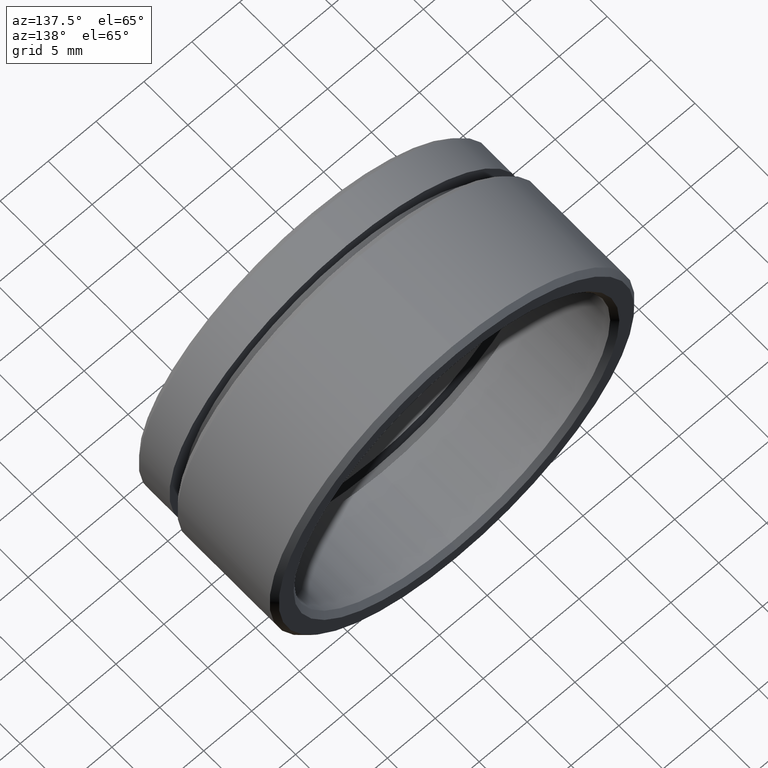
[diagram: clean part render]
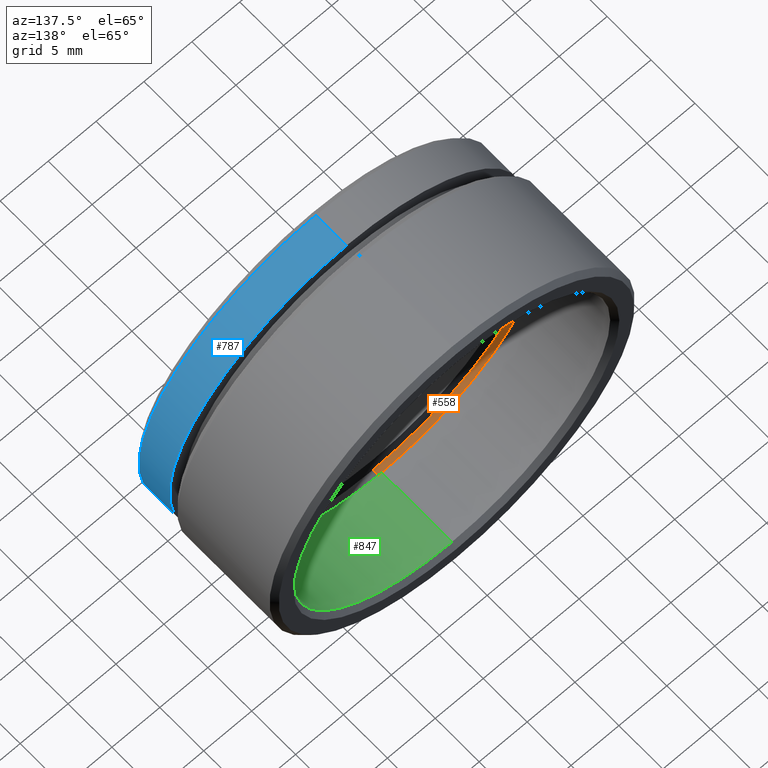
[diagram: same view with three faces highlighted in distinct colors, each labeled with its STEP entity id]
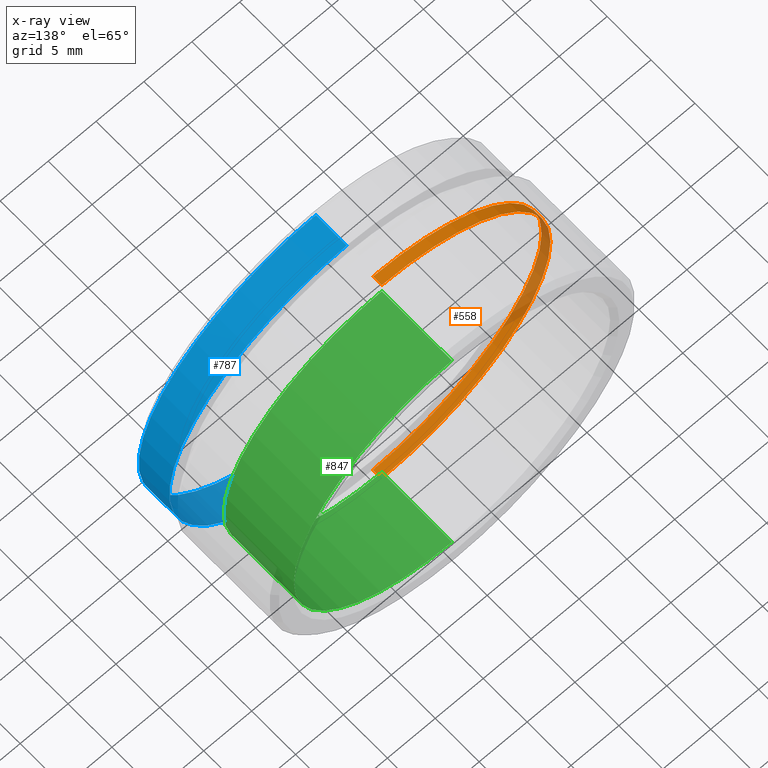
[diagram: x-ray of the same camera — body ghosted, the three highlighted faces saturated]
A machine part, auxiliary view with three faces highlighted in distinct colors.
The next image is the same camera in x-ray (body ghosted, the three faces saturated) — at least one of them is partly hidden behind the body in this view.
Their STEP definitions:

[orange] entity #558 — the highlighted cylindrical surface (partial cylindrical patch) has radius 17.6 mm, axis along (-0, -1, -0).
#28 = VERTEX_POINT ( 'NONE', #668 ) ;
#46 = DIRECTION ( 'NONE',  ( -0.0000000000000000000, -1.000000000000000000, -0.0000000000000000000 ) ) ;
#93 = AXIS2_PLACEMENT_3D ( 'NONE', #188, #46, #199 ) ;
#111 = ORIENTED_EDGE ( 'NONE', *, *, #666, .F. ) ;
#117 = CARTESIAN_POINT ( 'NONE',  ( 0.0000000000000000000, 0.0000000000000000000, -17.60000000000000100 ) ) ;
#125 = CARTESIAN_POINT ( 'NONE',  ( 2.155378366499341600E-015, 8.000000000000000000, 17.60000000000000100 ) ) ;
#154 = EDGE_CURVE ( 'NONE', #28, #497, #358, .T. ) ;
#187 = ORIENTED_EDGE ( 'NONE', *, *, #344, .T. ) ;
#188 = CARTESIAN_POINT ( 'NONE',  ( 0.0000000000000000000, 8.000000000000000000, 0.0000000000000000000 ) ) ;
#199 = DIRECTION ( 'NONE',  ( 0.0000000000000000000, 0.0000000000000000000, -1.000000000000000000 ) ) ;
#272 = VERTEX_POINT ( 'NONE', #125 ) ;
#286 = DIRECTION ( 'NONE',  ( -0.0000000000000000000, -1.000000000000000000, -0.0000000000000000000 ) ) ;
#291 = ORIENTED_EDGE ( 'NONE', *, *, #292, .F. ) ;
#292 = EDGE_CURVE ( 'NONE', #448, #497, #628, .T. ) ;
#322 = CARTESIAN_POINT ( 'NONE',  ( 0.0000000000000000000, 8.000000000000000000, -17.60000000000000100 ) ) ;
#344 = EDGE_CURVE ( 'NONE', #272, #28, #470, .T. ) ;
#350 = EDGE_LOOP ( 'NONE', ( #111, #187, #603, #291 ) ) ;
#358 = CIRCLE ( 'NONE', #775, 17.60000000000000100 ) ;
#394 = CARTESIAN_POINT ( 'NONE',  ( 0.0000000000000000000, 0.0000000000000000000, 0.0000000000000000000 ) ) ;
#395 = DIRECTION ( 'NONE',  ( -0.0000000000000000000, -1.000000000000000000, -0.0000000000000000000 ) ) ;
#415 = VECTOR ( 'NONE', #286, 1000.000000000000000 ) ;
#448 = VERTEX_POINT ( 'NONE', #322 ) ;
#456 = CARTESIAN_POINT ( 'NONE',  ( 0.0000000000000000000, 7.000000000000000000, 0.0000000000000000000 ) ) ;
#470 = LINE ( 'NONE', #834, #813 ) ;
#484 = DIRECTION ( 'NONE',  ( 0.0000000000000000000, 0.0000000000000000000, -1.000000000000000000 ) ) ;
#497 = VERTEX_POINT ( 'NONE', #706 ) ;
#510 = AXIS2_PLACEMENT_3D ( 'NONE', #394, #395, #647 ) ;
#541 = CYLINDRICAL_SURFACE ( 'NONE', #510, 17.60000000000000100 ) ;
#558 = ADVANCED_FACE ( 'NONE', ( #782 ), #541, .F. ) ;
#603 = ORIENTED_EDGE ( 'NONE', *, *, #154, .T. ) ;
#628 = LINE ( 'NONE', #117, #415 ) ;
#647 = DIRECTION ( 'NONE',  ( 0.0000000000000000000, 0.0000000000000000000, -1.000000000000000000 ) ) ;
#666 = EDGE_CURVE ( 'NONE', #272, #448, #723, .T. ) ;
#668 = CARTESIAN_POINT ( 'NONE',  ( 2.155378366499341600E-015, 7.000000000000000000, 17.60000000000000100 ) ) ;
#706 = CARTESIAN_POINT ( 'NONE',  ( 0.0000000000000000000, 7.000000000000000000, -17.60000000000000100 ) ) ;
#723 = CIRCLE ( 'NONE', #93, 17.60000000000000100 ) ;
#775 = AXIS2_PLACEMENT_3D ( 'NONE', #456, #840, #484 ) ;
#782 = FACE_OUTER_BOUND ( 'NONE', #350, .T. ) ;
#813 = VECTOR ( 'NONE', #824, 1000.000000000000000 ) ;
#824 = DIRECTION ( 'NONE',  ( -0.0000000000000000000, -1.000000000000000000, -0.0000000000000000000 ) ) ;
#834 = CARTESIAN_POINT ( 'NONE',  ( 2.155378366499341600E-015, 0.0000000000000000000, 17.60000000000000100 ) ) ;
#840 = DIRECTION ( 'NONE',  ( -0.0000000000000000000, -1.000000000000000000, -0.0000000000000000000 ) ) ;

[blue] entity #787 — the highlighted cylindrical surface (partial cylindrical patch) has radius 18.5 mm, axis along (-0, -1, -0).
#8 = AXIS2_PLACEMENT_3D ( 'NONE', #165, #555, #306 ) ;
#19 = DIRECTION ( 'NONE',  ( -0.0000000000000000000, -1.000000000000000000, -0.0000000000000000000 ) ) ;
#32 = EDGE_CURVE ( 'NONE', #601, #513, #253, .T. ) ;
#47 = CARTESIAN_POINT ( 'NONE',  ( 0.0000000000000000000, 0.0000000000000000000, 0.0000000000000000000 ) ) ;
#56 = VERTEX_POINT ( 'NONE', #661 ) ;
#90 = ORIENTED_EDGE ( 'NONE', *, *, #243, .T. ) ;
#98 = VERTEX_POINT ( 'NONE', #857 ) ;
#105 = FACE_OUTER_BOUND ( 'NONE', #331, .T. ) ;
#165 = CARTESIAN_POINT ( 'NONE',  ( 0.0000000000000000000, 4.000000000000000900, 0.0000000000000000000 ) ) ;
#204 = CYLINDRICAL_SURFACE ( 'NONE', #853, 18.50000000000000400 ) ;
#243 = EDGE_CURVE ( 'NONE', #98, #601, #483, .T. ) ;
#253 = LINE ( 'NONE', #323, #444 ) ;
#301 = ORIENTED_EDGE ( 'NONE', *, *, #648, .F. ) ;
#306 = DIRECTION ( 'NONE',  ( 0.0000000000000000000, 0.0000000000000000000, -1.000000000000000000 ) ) ;
#323 = CARTESIAN_POINT ( 'NONE',  ( 2.265596578422603800E-015, 0.0000000000000000000, 18.50000000000000400 ) ) ;
#331 = EDGE_LOOP ( 'NONE', ( #90, #703, #340, #301 ) ) ;
#340 = ORIENTED_EDGE ( 'NONE', *, *, #494, .T. ) ;
#380 = DIRECTION ( 'NONE',  ( 0.0000000000000000000, 1.000000000000000000, 0.0000000000000000000 ) ) ;
#384 = DIRECTION ( 'NONE',  ( 0.0000000000000000000, 0.0000000000000000000, -1.000000000000000000 ) ) ;
#402 = VECTOR ( 'NONE', #438, 1000.000000000000000 ) ;
#438 = DIRECTION ( 'NONE',  ( -0.0000000000000000000, -1.000000000000000000, -0.0000000000000000000 ) ) ;
#440 = CARTESIAN_POINT ( 'NONE',  ( 0.0000000000000000000, 0.0000000000000000000, -18.50000000000000400 ) ) ;
#444 = VECTOR ( 'NONE', #539, 1000.000000000000000 ) ;
#466 = DIRECTION ( 'NONE',  ( 0.0000000000000000000, 0.0000000000000000000, -1.000000000000000000 ) ) ;
#483 = CIRCLE ( 'NONE', #8, 18.50000000000000400 ) ;
#494 = EDGE_CURVE ( 'NONE', #513, #56, #699, .T. ) ;
#513 = VERTEX_POINT ( 'NONE', #683 ) ;
#539 = DIRECTION ( 'NONE',  ( -0.0000000000000000000, -1.000000000000000000, -0.0000000000000000000 ) ) ;
#555 = DIRECTION ( 'NONE',  ( -0.0000000000000000000, -1.000000000000000000, -0.0000000000000000000 ) ) ;
#575 = AXIS2_PLACEMENT_3D ( 'NONE', #696, #380, #384 ) ;
#601 = VERTEX_POINT ( 'NONE', #678 ) ;
#648 = EDGE_CURVE ( 'NONE', #98, #56, #650, .T. ) ;
#650 = LINE ( 'NONE', #440, #402 ) ;
#661 = CARTESIAN_POINT ( 'NONE',  ( 0.0000000000000000000, 0.5000000000000038900, -18.50000000000000400 ) ) ;
#678 = CARTESIAN_POINT ( 'NONE',  ( 2.265596578422603800E-015, 4.000000000000000900, 18.50000000000000400 ) ) ;
#683 = CARTESIAN_POINT ( 'NONE',  ( 2.265596578422603800E-015, 0.5000000000000038900, 18.50000000000000400 ) ) ;
#696 = CARTESIAN_POINT ( 'NONE',  ( 0.0000000000000000000, 0.5000000000000038900, 0.0000000000000000000 ) ) ;
#699 = CIRCLE ( 'NONE', #575, 18.50000000000000400 ) ;
#703 = ORIENTED_EDGE ( 'NONE', *, *, #32, .T. ) ;
#787 = ADVANCED_FACE ( 'NONE', ( #105 ), #204, .T. ) ;
#853 = AXIS2_PLACEMENT_3D ( 'NONE', #47, #19, #466 ) ;
#857 = CARTESIAN_POINT ( 'NONE',  ( 0.0000000000000000000, 4.000000000000000900, -18.50000000000000400 ) ) ;

[green] entity #847 — the highlighted cylindrical surface (partial cylindrical patch) has radius 16.5 mm, axis along (-0, -1, -0).
#20 = EDGE_CURVE ( 'NONE', #55, #244, #460, .T. ) ;
#55 = VERTEX_POINT ( 'NONE', #656 ) ;
#76 = DIRECTION ( 'NONE',  ( 0.0000000000000000000, 0.0000000000000000000, 1.000000000000000000 ) ) ;
#85 = CARTESIAN_POINT ( 'NONE',  ( 0.0000000000000000000, 15.99999999999999600, 0.0000000000000000000 ) ) ;
#87 = CIRCLE ( 'NONE', #197, 16.50000000000000000 ) ;
#89 = DIRECTION ( 'NONE',  ( -0.0000000000000000000, 1.000000000000000000, -0.0000000000000000000 ) ) ;
#166 = ORIENTED_EDGE ( 'NONE', *, *, #552, .T. ) ;
#175 = ORIENTED_EDGE ( 'NONE', *, *, #537, .F. ) ;
#191 = FACE_OUTER_BOUND ( 'NONE', #451, .T. ) ;
#197 = AXIS2_PLACEMENT_3D ( 'NONE', #85, #89, #76 ) ;
#212 = AXIS2_PLACEMENT_3D ( 'NONE', #662, #688, #686 ) ;
#214 = CARTESIAN_POINT ( 'NONE',  ( 2.020667218593133100E-015, 15.99999999999999600, 16.50000000000000000 ) ) ;
#235 = ORIENTED_EDGE ( 'NONE', *, *, #20, .T. ) ;
#244 = VERTEX_POINT ( 'NONE', #329 ) ;
#251 = CARTESIAN_POINT ( 'NONE',  ( 0.0000000000000000000, 15.99999999999999600, -16.50000000000000000 ) ) ;
#290 = VERTEX_POINT ( 'NONE', #214 ) ;
#313 = DIRECTION ( 'NONE',  ( -0.0000000000000000000, -1.000000000000000000, -0.0000000000000000000 ) ) ;
#329 = CARTESIAN_POINT ( 'NONE',  ( 2.020667218593133100E-015, 8.000000000000001800, 16.50000000000000000 ) ) ;
#371 = CARTESIAN_POINT ( 'NONE',  ( 2.020667218593133100E-015, 0.0000000000000000000, 16.50000000000000000 ) ) ;
#451 = EDGE_LOOP ( 'NONE', ( #175, #689, #166, #235 ) ) ;
#452 = AXIS2_PLACEMENT_3D ( 'NONE', #749, #313, #727 ) ;
#460 = CIRCLE ( 'NONE', #212, 16.50000000000000000 ) ;
#537 = EDGE_CURVE ( 'NONE', #290, #244, #716, .T. ) ;
#552 = EDGE_CURVE ( 'NONE', #569, #55, #848, .T. ) ;
#569 = VERTEX_POINT ( 'NONE', #251 ) ;
#642 = DIRECTION ( 'NONE',  ( -0.0000000000000000000, -1.000000000000000000, -0.0000000000000000000 ) ) ;
#646 = CARTESIAN_POINT ( 'NONE',  ( 0.0000000000000000000, 0.0000000000000000000, -16.50000000000000000 ) ) ;
#656 = CARTESIAN_POINT ( 'NONE',  ( 0.0000000000000000000, 8.000000000000001800, -16.50000000000000000 ) ) ;
#662 = CARTESIAN_POINT ( 'NONE',  ( 0.0000000000000000000, 8.000000000000001800, 0.0000000000000000000 ) ) ;
#686 = DIRECTION ( 'NONE',  ( 0.0000000000000000000, 0.0000000000000000000, -1.000000000000000000 ) ) ;
#688 = DIRECTION ( 'NONE',  ( -0.0000000000000000000, -1.000000000000000000, -0.0000000000000000000 ) ) ;
#689 = ORIENTED_EDGE ( 'NONE', *, *, #731, .T. ) ;
#707 = DIRECTION ( 'NONE',  ( -0.0000000000000000000, -1.000000000000000000, -0.0000000000000000000 ) ) ;
#716 = LINE ( 'NONE', #371, #822 ) ;
#727 = DIRECTION ( 'NONE',  ( 0.0000000000000000000, 0.0000000000000000000, -1.000000000000000000 ) ) ;
#731 = EDGE_CURVE ( 'NONE', #290, #569, #87, .T. ) ;
#749 = CARTESIAN_POINT ( 'NONE',  ( 0.0000000000000000000, 0.0000000000000000000, 0.0000000000000000000 ) ) ;
#785 = VECTOR ( 'NONE', #642, 1000.000000000000000 ) ;
#821 = CYLINDRICAL_SURFACE ( 'NONE', #452, 16.50000000000000000 ) ;
#822 = VECTOR ( 'NONE', #707, 1000.000000000000000 ) ;
#847 = ADVANCED_FACE ( 'NONE', ( #191 ), #821, .F. ) ;
#848 = LINE ( 'NONE', #646, #785 ) ;